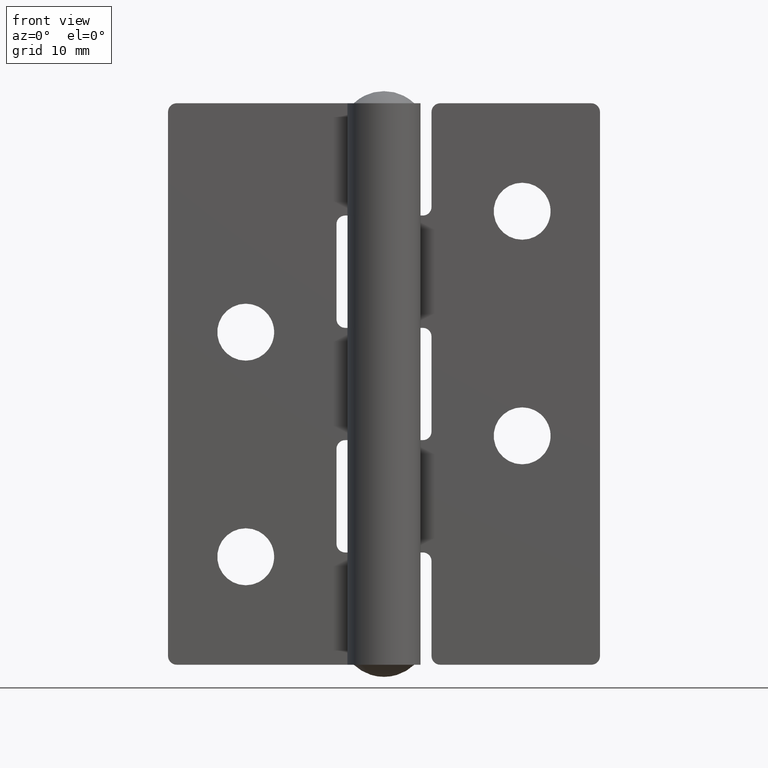
[diagram: clean part render]
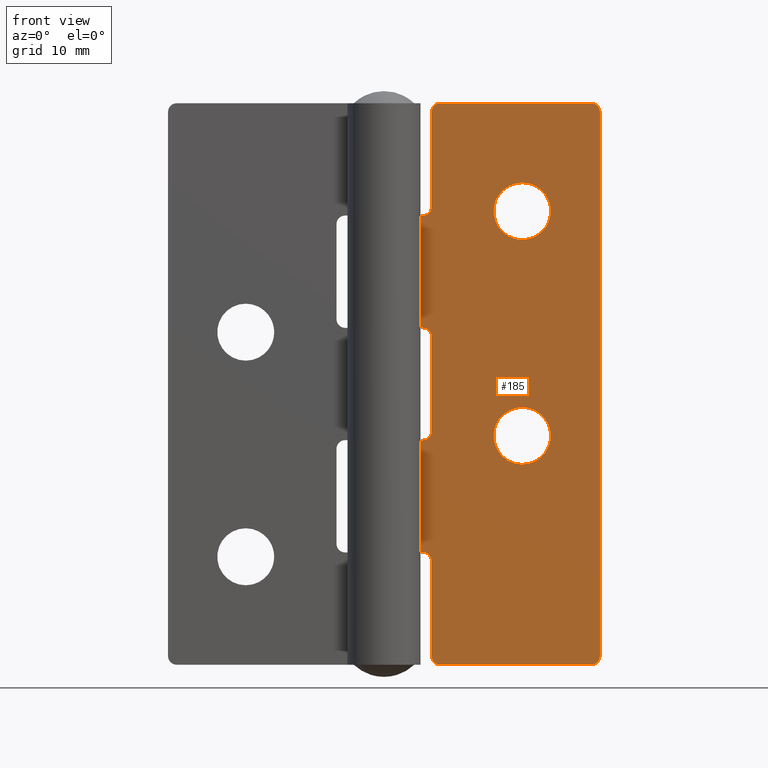
[diagram: same view with one face highlighted and labeled with its STEP entity id]
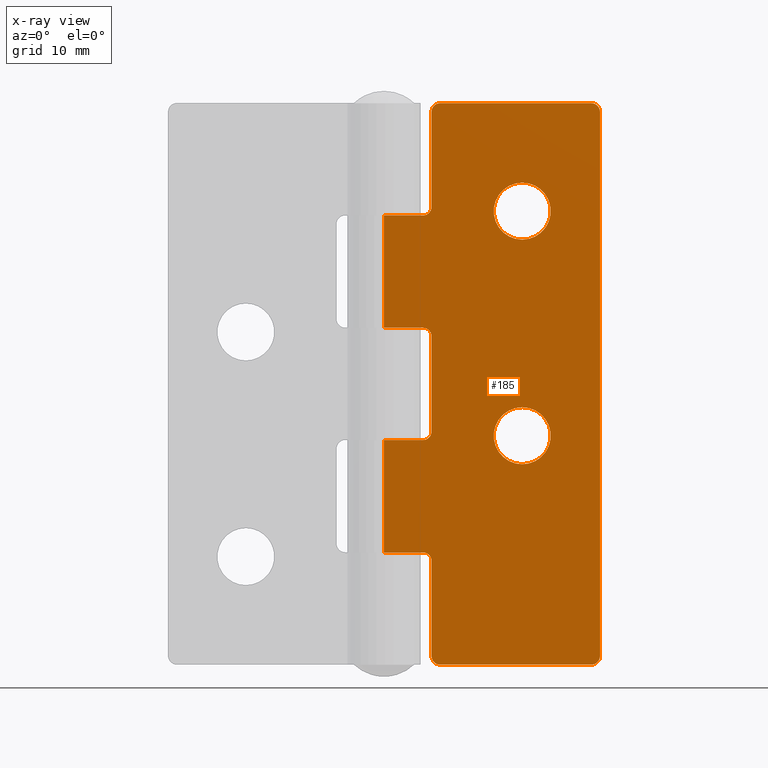
[diagram: x-ray of the same camera — body ghosted, the highlighted face saturated]
A machine part, front view. The second image highlights one B-rep face of the part: STEP entity #185.
The next image is the same camera in x-ray: the body ghosted, the highlighted face saturated — about 0% of this face is hidden behind the body in this view.
In plain terms, the highlighted planar face has unit normal (0, -1, 0).
Its self-contained STEP definition (entity closure, byte-faithful):
#185=ADVANCED_FACE('',(#582,#583,#584),#581,.T.);
#581=PLANE('',#1094);
#582=FACE_OUTER_BOUND('',#1095,.T.);
#583=FACE_BOUND('',#1096,.T.);
#584=FACE_BOUND('',#1097,.T.);
#1091=CARTESIAN_POINT('',(-2.50000000000E+00,-2.00000000000E+00,7.15000000000E+01));
#1092=DIRECTION('',(0.00000000000E+00,-1.00000000000E+00,0.00000000000E+00));
#1093=DIRECTION('',(0.00000000000E+00,0.00000000000E+00,-1.00000000000E+00));
#1094=AXIS2_PLACEMENT_3D('',#1091,#1092,#1093);
#1095=EDGE_LOOP('',(#1453,#1454,#1455,#1456,#1457,#1458,#1459,#1460,#1461,#1462,#1463,#1464,#1465,#1466,#1467,#1468,#1469,#1470,#1471,#1472));
#1096=EDGE_LOOP('',(#1473,#1474));
#1097=EDGE_LOOP('',(#1475,#1476));
#1453=ORIENTED_EDGE('',*,*,#1737,.F.);
#1454=ORIENTED_EDGE('',*,*,#1738,.T.);
#1455=ORIENTED_EDGE('',*,*,#1739,.F.);
#1456=ORIENTED_EDGE('',*,*,#1740,.T.);
#1457=ORIENTED_EDGE('',*,*,#1741,.F.);
#1458=ORIENTED_EDGE('',*,*,#1721,.T.);
#1459=ORIENTED_EDGE('',*,*,#1742,.T.);
#1460=ORIENTED_EDGE('',*,*,#1715,.T.);
#1461=ORIENTED_EDGE('',*,*,#1743,.F.);
#1462=ORIENTED_EDGE('',*,*,#1744,.T.);
#1463=ORIENTED_EDGE('',*,*,#1745,.F.);
#1464=ORIENTED_EDGE('',*,*,#1723,.T.);
#1465=ORIENTED_EDGE('',*,*,#1746,.F.);
#1466=ORIENTED_EDGE('',*,*,#1747,.T.);
#1467=ORIENTED_EDGE('',*,*,#1748,.F.);
#1468=ORIENTED_EDGE('',*,*,#1749,.T.);
#1469=ORIENTED_EDGE('',*,*,#1750,.F.);
#1470=ORIENTED_EDGE('',*,*,#1730,.T.);
#1471=ORIENTED_EDGE('',*,*,#1751,.F.);
#1472=ORIENTED_EDGE('',*,*,#1752,.T.);
#1473=ORIENTED_EDGE('',*,*,#1753,.T.);
#1474=ORIENTED_EDGE('',*,*,#1754,.T.);
#1475=ORIENTED_EDGE('',*,*,#1755,.T.);
#1476=ORIENTED_EDGE('',*,*,#1756,.T.);
#1715=EDGE_CURVE('',#2389,#2390,#2391,.T.);
#1721=EDGE_CURVE('',#2432,#2425,#2433,.T.);
#1723=EDGE_CURVE('',#2445,#2446,#2447,.T.);
#1730=EDGE_CURVE('',#2493,#2494,#2495,.T.);
#1737=EDGE_CURVE('',#2541,#2542,#2543,.T.);
#1738=EDGE_CURVE('',#2541,#2549,#2550,.T.);
#1739=EDGE_CURVE('',#2556,#2549,#2557,.T.);
#1740=EDGE_CURVE('',#2556,#2563,#2564,.T.);
#1741=EDGE_CURVE('',#2432,#2563,#2570,.T.);
#1742=EDGE_CURVE('',#2425,#2389,#2576,.T.);
#1743=EDGE_CURVE('',#2582,#2390,#2583,.T.);
#1744=EDGE_CURVE('',#2582,#2589,#2590,.T.);
#1745=EDGE_CURVE('',#2445,#2589,#2596,.T.);
#1746=EDGE_CURVE('',#2602,#2446,#2603,.T.);
#1747=EDGE_CURVE('',#2602,#2609,#2610,.T.);
#1748=EDGE_CURVE('',#2616,#2609,#2617,.T.);
#1749=EDGE_CURVE('',#2616,#2623,#2624,.T.);
#1750=EDGE_CURVE('',#2493,#2623,#2630,.T.);
#1751=EDGE_CURVE('',#2636,#2494,#2637,.T.);
#1752=EDGE_CURVE('',#2636,#2542,#2643,.T.);
#1753=EDGE_CURVE('',#2649,#2650,#2651,.T.);
#1754=EDGE_CURVE('',#2650,#2649,#2657,.T.);
#1755=EDGE_CURVE('',#2663,#2664,#2665,.T.);
#1756=EDGE_CURVE('',#2664,#2663,#2671,.T.);
#2389=VERTEX_POINT('',#3403);
#2390=VERTEX_POINT('',#3404);
#2391=CIRCLE('',#3408,1.00000000000E+00);
#2425=VERTEX_POINT('',#3427);
#2432=VERTEX_POINT('',#3431);
#2433=CIRCLE('',#3435,1.00000000000E+00);
#2445=VERTEX_POINT('',#3439);
#2446=VERTEX_POINT('',#3440);
#2447=LINE('',#3441,#3442);
#2493=VERTEX_POINT('',#3468);
#2494=VERTEX_POINT('',#3469);
#2495=LINE('',#3470,#3471);
#2541=VERTEX_POINT('',#3497);
#2542=VERTEX_POINT('',#3498);
#2543=LINE('',#3499,#3500);
#2549=VERTEX_POINT('',#3502);
#2550=CIRCLE('',#3506,1.00000000000E+00);
#2556=VERTEX_POINT('',#3507);
#2557=LINE('',#3508,#3509);
#2563=VERTEX_POINT('',#3511);
#2564=CIRCLE('',#3515,1.00000000000E+00);
#2570=LINE('',#3516,#3517);
#2576=LINE('',#3519,#3520);
#2582=VERTEX_POINT('',#3522);
#2583=LINE('',#3523,#3524);
#2589=VERTEX_POINT('',#3526);
#2590=CIRCLE('',#3530,1.00000000000E+00);
#2596=LINE('',#3531,#3532);
#2602=VERTEX_POINT('',#3534);
#2603=LINE('',#3535,#3536);
#2609=VERTEX_POINT('',#3538);
#2610=CIRCLE('',#3542,1.00000000000E+00);
#2616=VERTEX_POINT('',#3543);
#2617=LINE('',#3544,#3545);
#2623=VERTEX_POINT('',#3547);
#2624=CIRCLE('',#3551,1.00000000000E+00);
#2630=LINE('',#3552,#3553);
#2636=VERTEX_POINT('',#3555);
#2637=LINE('',#3556,#3557);
#2643=CIRCLE('',#3562,1.00000000000E+00);
#2649=VERTEX_POINT('',#3563);
#2650=VERTEX_POINT('',#3564);
#2651=CIRCLE('',#3568,3.30000000000E+00);
#2657=CIRCLE('',#3572,3.30000000000E+00);
#2663=VERTEX_POINT('',#3573);
#2664=VERTEX_POINT('',#3574);
#2665=CIRCLE('',#3578,3.30000000000E+00);
#2671=CIRCLE('',#3582,3.30000000000E+00);
#3403=CARTESIAN_POINT('',(6.50000000000E+00,-2.00000000000E+00,6.50000000000E+01));
#3404=CARTESIAN_POINT('',(5.50000000000E+00,-2.00000000000E+00,6.40000000000E+01));
#3405=CARTESIAN_POINT('',(6.50000000000E+00,-2.00000000001E+00,6.40000000000E+01));
#3406=DIRECTION('',(0.00000000000E+00,-1.00000000000E+00,0.00000000000E+00));
#3407=DIRECTION('',(-0.00000000000E+00,-0.00000000000E+00,1.00000000000E+00));
#3408=AXIS2_PLACEMENT_3D('',#3405,#3406,#3407);
#3427=CARTESIAN_POINT('',(2.40000000000E+01,-2.00000000000E+00,6.50000000000E+01));
#3431=CARTESIAN_POINT('',(2.50000000000E+01,-2.00000000000E+00,6.40000000000E+01));
#3432=CARTESIAN_POINT('',(2.40000000000E+01,-2.00000000000E+00,6.40000000000E+01));
#3433=DIRECTION('',(0.00000000000E+00,-1.00000000000E+00,0.00000000000E+00));
#3434=DIRECTION('',(-0.00000000000E+00,-0.00000000000E+00,1.00000000000E+00));
#3435=AXIS2_PLACEMENT_3D('',#3432,#3433,#3434);
#3439=CARTESIAN_POINT('',(-4.13318294712E-16,-2.00000000000E+00,5.20000000000E+01));
#3440=CARTESIAN_POINT('',(-4.13318294712E-16,-2.00000000000E+00,3.90000000000E+01));
#3441=CARTESIAN_POINT('',(-4.13318294712E-16,-2.00000000000E+00,5.20000000000E+01));
#3442=VECTOR('',#3443,1.30000000000E+01);
#3443=DIRECTION('',(0.00000000000E+00,0.00000000000E+00,-1.00000000000E+00));
#3468=CARTESIAN_POINT('',(-4.13318294712E-16,-2.00000000000E+00,2.60000000000E+01));
#3469=CARTESIAN_POINT('',(-4.13318294712E-16,-2.00000000000E+00,1.30000000000E+01));
#3470=CARTESIAN_POINT('',(-4.13318294712E-16,-2.00000000000E+00,2.60000000000E+01));
#3471=VECTOR('',#3472,1.30000000000E+01);
#3472=DIRECTION('',(0.00000000000E+00,0.00000000000E+00,-1.00000000000E+00));
#3497=CARTESIAN_POINT('',(5.50000000000E+00,-2.00000000000E+00,1.00000000000E+00));
#3498=CARTESIAN_POINT('',(5.50000000000E+00,-2.00000000001E+00,1.20000000000E+01));
#3499=CARTESIAN_POINT('',(5.50000000000E+00,-2.00000000000E+00,1.00000000000E+00));
#3500=VECTOR('',#3501,1.10000000000E+01);
#3501=DIRECTION('',(0.00000000000E+00,0.00000000000E+00,1.00000000000E+00));
#3502=CARTESIAN_POINT('',(6.50000000000E+00,-2.00000000000E+00,-8.52651282912E-14));
#3503=CARTESIAN_POINT('',(6.50000000000E+00,-2.00000000000E+00,1.00000000000E+00));
#3504=DIRECTION('',(0.00000000000E+00,-1.00000000000E+00,0.00000000000E+00));
#3505=DIRECTION('',(-0.00000000000E+00,-0.00000000000E+00,1.00000000000E+00));
#3506=AXIS2_PLACEMENT_3D('',#3503,#3504,#3505);
#3507=CARTESIAN_POINT('',(2.40000000000E+01,-2.00000000000E+00,-8.52651282912E-14));
#3508=CARTESIAN_POINT('',(2.40000000000E+01,-2.00000000000E+00,-8.52651282912E-14));
#3509=VECTOR('',#3510,1.75000000000E+01);
#3510=DIRECTION('',(-1.00000000000E+00,0.00000000000E+00,0.00000000000E+00));
#3511=CARTESIAN_POINT('',(2.50000000000E+01,-2.00000000000E+00,1.00000000000E+00));
#3512=CARTESIAN_POINT('',(2.40000000000E+01,-2.00000000000E+00,1.00000000000E+00));
#3513=DIRECTION('',(0.00000000000E+00,-1.00000000000E+00,0.00000000000E+00));
#3514=DIRECTION('',(-0.00000000000E+00,-0.00000000000E+00,1.00000000000E+00));
#3515=AXIS2_PLACEMENT_3D('',#3512,#3513,#3514);
#3516=CARTESIAN_POINT('',(2.50000000000E+01,-2.00000000000E+00,6.40000000000E+01));
#3517=VECTOR('',#3518,6.30000000000E+01);
#3518=DIRECTION('',(0.00000000000E+00,0.00000000000E+00,-1.00000000000E+00));
#3519=CARTESIAN_POINT('',(2.40000000000E+01,-2.00000000000E+00,6.50000000000E+01));
#3520=VECTOR('',#3521,1.75000000000E+01);
#3521=DIRECTION('',(-1.00000000000E+00,0.00000000000E+00,0.00000000000E+00));
#3522=CARTESIAN_POINT('',(5.50000000000E+00,-2.00000000001E+00,5.30000000000E+01));
#3523=CARTESIAN_POINT('',(5.50000000000E+00,-2.00000000000E+00,5.30000000000E+01));
#3524=VECTOR('',#3525,1.10000000000E+01);
#3525=DIRECTION('',(0.00000000000E+00,0.00000000000E+00,1.00000000000E+00));
#3526=CARTESIAN_POINT('',(4.50000000000E+00,-2.00000000001E+00,5.20000000000E+01));
#3527=CARTESIAN_POINT('',(4.50000000000E+00,-2.00000000001E+00,5.30000000000E+01));
#3528=DIRECTION('',(-0.00000000000E+00,1.00000000000E+00,0.00000000000E+00));
#3529=DIRECTION('',(-0.00000000000E+00,-0.00000000000E+00,1.00000000000E+00));
#3530=AXIS2_PLACEMENT_3D('',#3527,#3528,#3529);
#3531=CARTESIAN_POINT('',(0.00000000000E+00,-2.00000000000E+00,5.20000000000E+01));
#3532=VECTOR('',#3533,4.50000000000E+00);
#3533=DIRECTION('',(1.00000000000E+00,0.00000000000E+00,0.00000000000E+00));
#3534=CARTESIAN_POINT('',(4.50000000000E+00,-2.00000000001E+00,3.90000000000E+01));
#3535=CARTESIAN_POINT('',(4.50000000000E+00,-2.00000000000E+00,3.90000000000E+01));
#3536=VECTOR('',#3537,4.50000000000E+00);
#3537=DIRECTION('',(-1.00000000000E+00,0.00000000000E+00,0.00000000000E+00));
#3538=CARTESIAN_POINT('',(5.50000000000E+00,-2.00000000001E+00,3.80000000000E+01));
#3539=CARTESIAN_POINT('',(4.50000000000E+00,-2.00000000001E+00,3.80000000000E+01));
#3540=DIRECTION('',(-0.00000000000E+00,1.00000000000E+00,0.00000000000E+00));
#3541=DIRECTION('',(-0.00000000000E+00,-0.00000000000E+00,1.00000000000E+00));
#3542=AXIS2_PLACEMENT_3D('',#3539,#3540,#3541);
#3543=CARTESIAN_POINT('',(5.50000000000E+00,-2.00000000001E+00,2.70000000000E+01));
#3544=CARTESIAN_POINT('',(5.50000000000E+00,-2.00000000000E+00,2.70000000000E+01));
#3545=VECTOR('',#3546,1.10000000000E+01);
#3546=DIRECTION('',(0.00000000000E+00,0.00000000000E+00,1.00000000000E+00));
#3547=CARTESIAN_POINT('',(4.50000000000E+00,-2.00000000001E+00,2.60000000000E+01));
#3548=CARTESIAN_POINT('',(4.50000000000E+00,-2.00000000001E+00,2.70000000000E+01));
#3549=DIRECTION('',(-0.00000000000E+00,1.00000000000E+00,0.00000000000E+00));
#3550=DIRECTION('',(-0.00000000000E+00,-0.00000000000E+00,1.00000000000E+00));
#3551=AXIS2_PLACEMENT_3D('',#3548,#3549,#3550);
#3552=CARTESIAN_POINT('',(0.00000000000E+00,-2.00000000000E+00,2.60000000000E+01));
#3553=VECTOR('',#3554,4.50000000000E+00);
#3554=DIRECTION('',(1.00000000000E+00,0.00000000000E+00,-9.47390314347E-15));
#3555=CARTESIAN_POINT('',(4.50000000000E+00,-2.00000000001E+00,1.30000000000E+01));
#3556=CARTESIAN_POINT('',(4.50000000000E+00,-2.00000000000E+00,1.30000000000E+01));
#3557=VECTOR('',#3558,4.50000000000E+00);
#3558=DIRECTION('',(-1.00000000000E+00,0.00000000000E+00,0.00000000000E+00));
#3559=CARTESIAN_POINT('',(4.50000000000E+00,-2.00000000001E+00,1.20000000000E+01));
#3560=DIRECTION('',(-0.00000000000E+00,1.00000000000E+00,0.00000000000E+00));
#3561=DIRECTION('',(-0.00000000000E+00,-0.00000000000E+00,1.00000000000E+00));
#3562=AXIS2_PLACEMENT_3D('',#3559,#3560,#3561);
#3563=CARTESIAN_POINT('',(1.60000000000E+01,-2.00000000001E+00,2.32000000000E+01));
#3564=CARTESIAN_POINT('',(1.60000000000E+01,-2.00000000001E+00,2.98000000000E+01));
#3565=CARTESIAN_POINT('',(1.60000000000E+01,-2.00000000001E+00,2.65000000000E+01));
#3566=DIRECTION('',(0.00000000000E+00,1.00000000000E+00,0.00000000000E+00));
#3567=DIRECTION('',(-1.22460635382E-16,0.00000000000E+00,-1.00000000000E+00));
#3568=AXIS2_PLACEMENT_3D('',#3565,#3566,#3567);
#3569=CARTESIAN_POINT('',(1.60000000000E+01,-2.00000000001E+00,2.65000000000E+01));
#3570=DIRECTION('',(0.00000000000E+00,1.00000000000E+00,0.00000000000E+00));
#3571=DIRECTION('',(-1.22460635382E-16,0.00000000000E+00,-1.00000000000E+00));
#3572=AXIS2_PLACEMENT_3D('',#3569,#3570,#3571);
#3573=CARTESIAN_POINT('',(1.60000000000E+01,-2.00000000001E+00,4.92000000000E+01));
#3574=CARTESIAN_POINT('',(1.60000000000E+01,-2.00000000001E+00,5.58000000000E+01));
#3575=CARTESIAN_POINT('',(1.60000000000E+01,-2.00000000001E+00,5.25000000000E+01));
#3576=DIRECTION('',(0.00000000000E+00,1.00000000000E+00,0.00000000000E+00));
#3577=DIRECTION('',(-1.22460635382E-16,0.00000000000E+00,-1.00000000000E+00));
#3578=AXIS2_PLACEMENT_3D('',#3575,#3576,#3577);
#3579=CARTESIAN_POINT('',(1.60000000000E+01,-2.00000000001E+00,5.25000000000E+01));
#3580=DIRECTION('',(0.00000000000E+00,1.00000000000E+00,0.00000000000E+00));
#3581=DIRECTION('',(-1.22460635382E-16,0.00000000000E+00,-1.00000000000E+00));
#3582=AXIS2_PLACEMENT_3D('',#3579,#3580,#3581);